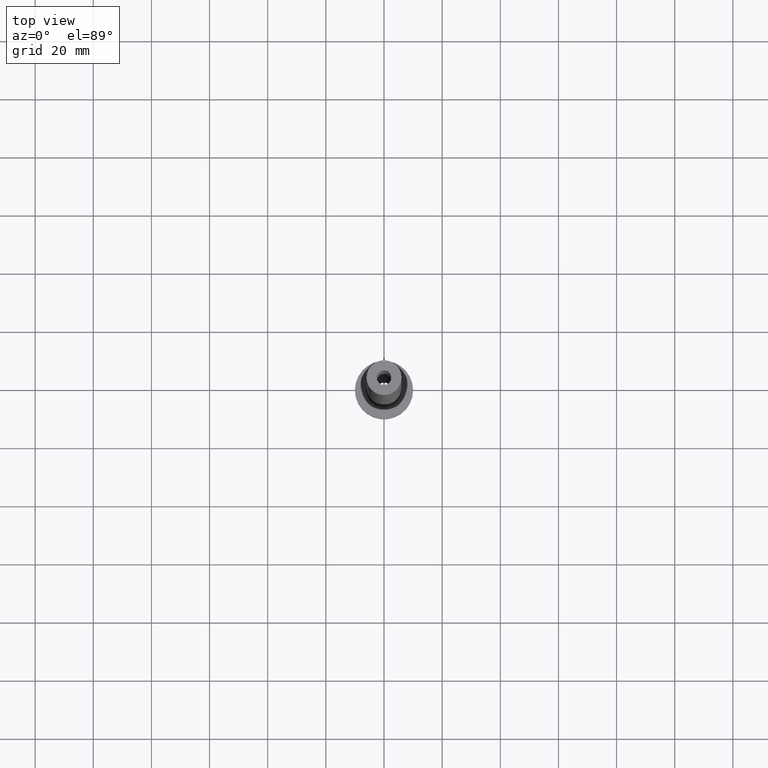
[diagram: clean part render]
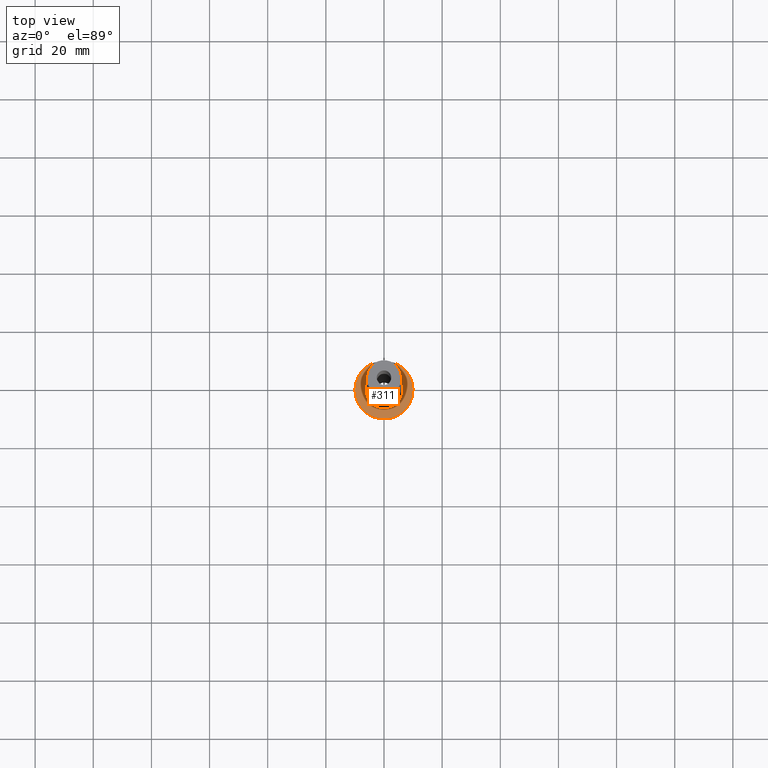
[diagram: same view with one face highlighted and labeled with its STEP entity id]
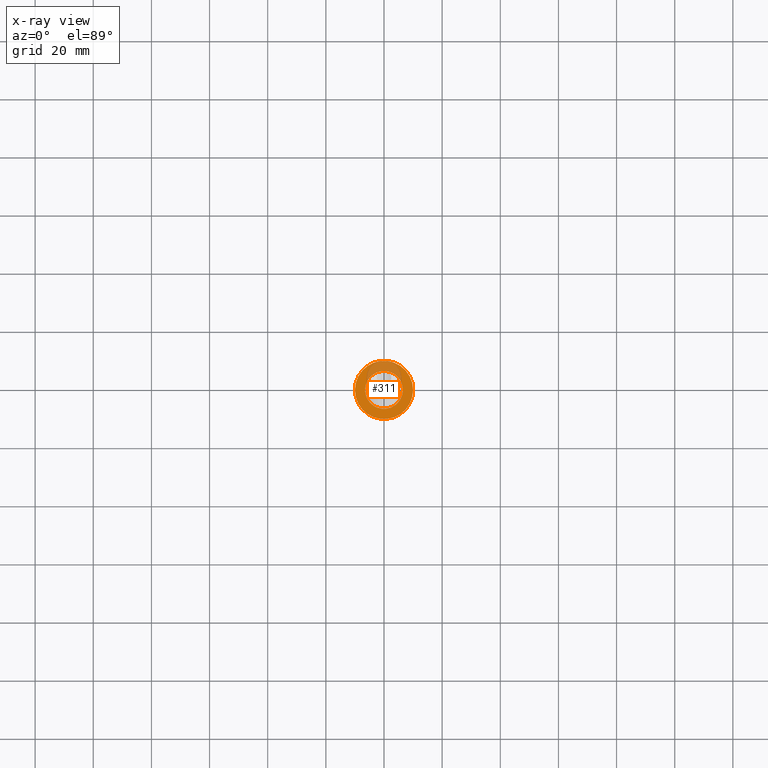
[diagram: x-ray of the same camera — body ghosted, the highlighted face saturated]
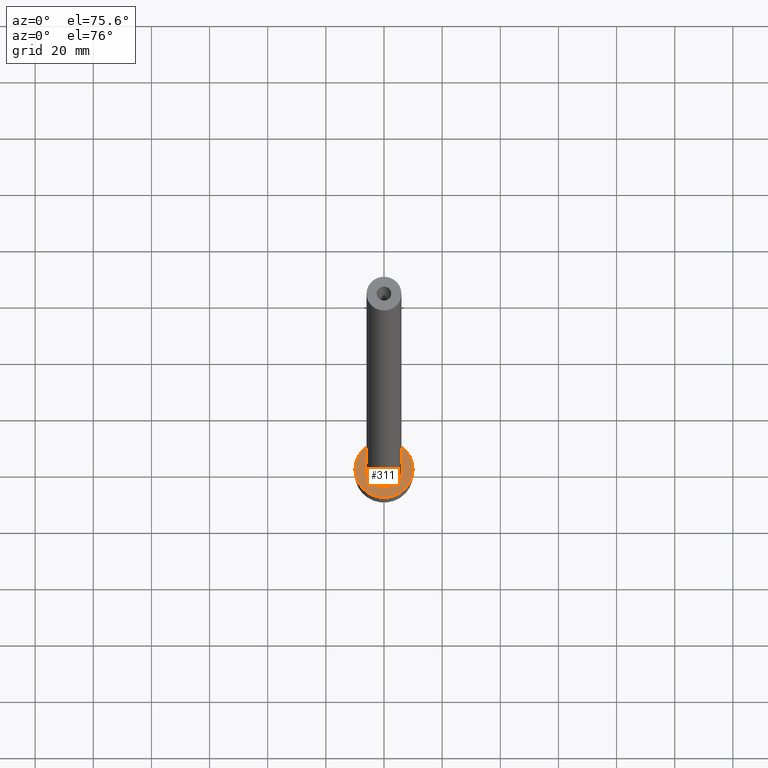
[diagram: same view with one face highlighted and labeled with its STEP entity id]
A machine part, top view. The second image highlights one B-rep face of the part: STEP entity #311.
The next image is the same camera in x-ray: the body ghosted, the highlighted face saturated — about 23% of this face is hidden behind the body in this view.
A second angle (auxiliary view) of the same face is appended — the face is thin or edge-on in the first view.
In plain terms, the highlighted planar face has unit normal (0, 0, 1).
Its self-contained STEP definition (entity closure, byte-faithful):
#3 = FACE_BOUND ( 'NONE', #322, .T. ) ;
#13 = AXIS2_PLACEMENT_3D ( 'NONE', #379, #94, #101 ) ;
#24 = DIRECTION ( 'NONE',  ( 1.000000000000000000, 0.000000000000000000, 0.000000000000000000 ) ) ;
#45 = EDGE_CURVE ( 'NONE', #304, #406, #99, .T. ) ;
#46 = DIRECTION ( 'NONE',  ( 1.000000000000000000, 0.000000000000000000, 0.000000000000000000 ) ) ;
#52 = EDGE_CURVE ( 'NONE', #353, #298, #157, .T. ) ;
#54 = CARTESIAN_POINT ( 'NONE',  ( 0.000000000000000000, 0.000000000000000000, 7.000000000000000000 ) ) ;
#86 = DIRECTION ( 'NONE',  ( 0.000000000000000000, 0.000000000000000000, 1.000000000000000000 ) ) ;
#94 = DIRECTION ( 'NONE',  ( -0.000000000000000000, -0.000000000000000000, -1.000000000000000000 ) ) ;
#99 = CIRCLE ( 'NONE', #339, 10.00000000000000000 ) ;
#101 = DIRECTION ( 'NONE',  ( 1.000000000000000000, 0.000000000000000000, 0.000000000000000000 ) ) ;
#111 = DIRECTION ( 'NONE',  ( 0.000000000000000000, 0.000000000000000000, 1.000000000000000000 ) ) ;
#123 = AXIS2_PLACEMENT_3D ( 'NONE', #54, #86, #430 ) ;
#135 = CARTESIAN_POINT ( 'NONE',  ( 0.000000000000000000, 0.000000000000000000, 7.000000000000000000 ) ) ;
#146 = DIRECTION ( 'NONE',  ( 1.000000000000000000, 0.000000000000000000, 0.000000000000000000 ) ) ;
#147 = CARTESIAN_POINT ( 'NONE',  ( 0.000000000000000000, 0.000000000000000000, 7.000000000000000000 ) ) ;
#154 = EDGE_CURVE ( 'NONE', #406, #304, #189, .T. ) ;
#157 = CIRCLE ( 'NONE', #13, 6.500000000000000888 ) ;
#176 = CARTESIAN_POINT ( 'NONE',  ( 6.500000000000000888, 0.000000000000000000, 7.000000000000002665 ) ) ;
#181 = CARTESIAN_POINT ( 'NONE',  ( -6.500000000000000888, 7.960204194457796463E-16, 7.000000000000002665 ) ) ;
#186 = ORIENTED_EDGE ( 'NONE', *, *, #45, .T. ) ;
#188 = ORIENTED_EDGE ( 'NONE', *, *, #346, .T. ) ;
#189 = CIRCLE ( 'NONE', #342, 10.00000000000000000 ) ;
#196 = ORIENTED_EDGE ( 'NONE', *, *, #52, .T. ) ;
#223 = CARTESIAN_POINT ( 'NONE',  ( -10.00000000000000000, 0.000000000000000000, 7.000000000000000000 ) ) ;
#229 = CIRCLE ( 'NONE', #407, 6.500000000000000888 ) ;
#260 = CARTESIAN_POINT ( 'NONE',  ( 0.000000000000000000, 0.000000000000000000, 7.000000000000000000 ) ) ;
#270 = DIRECTION ( 'NONE',  ( 0.000000000000000000, 0.000000000000000000, 1.000000000000000000 ) ) ;
#298 = VERTEX_POINT ( 'NONE', #176 ) ;
#304 = VERTEX_POINT ( 'NONE', #316 ) ;
#311 = ADVANCED_FACE ( 'NONE', ( #3, #327 ), #432, .T. ) ;
#316 = CARTESIAN_POINT ( 'NONE',  ( 10.00000000000000000, 1.224646799147353256E-15, 7.000000000000000000 ) ) ;
#322 = EDGE_LOOP ( 'NONE', ( #188, #196 ) ) ;
#327 = FACE_OUTER_BOUND ( 'NONE', #403, .T. ) ;
#339 = AXIS2_PLACEMENT_3D ( 'NONE', #135, #270, #24 ) ;
#342 = AXIS2_PLACEMENT_3D ( 'NONE', #147, #111, #146 ) ;
#346 = EDGE_CURVE ( 'NONE', #298, #353, #229, .T. ) ;
#353 = VERTEX_POINT ( 'NONE', #181 ) ;
#361 = DIRECTION ( 'NONE',  ( -0.000000000000000000, -0.000000000000000000, -1.000000000000000000 ) ) ;
#379 = CARTESIAN_POINT ( 'NONE',  ( 0.000000000000000000, 0.000000000000000000, 7.000000000000000000 ) ) ;
#399 = ORIENTED_EDGE ( 'NONE', *, *, #154, .T. ) ;
#403 = EDGE_LOOP ( 'NONE', ( #399, #186 ) ) ;
#406 = VERTEX_POINT ( 'NONE', #223 ) ;
#407 = AXIS2_PLACEMENT_3D ( 'NONE', #260, #361, #46 ) ;
#430 = DIRECTION ( 'NONE',  ( 1.000000000000000000, 0.000000000000000000, -0.000000000000000000 ) ) ;
#432 = PLANE ( 'NONE',  #123 ) ;